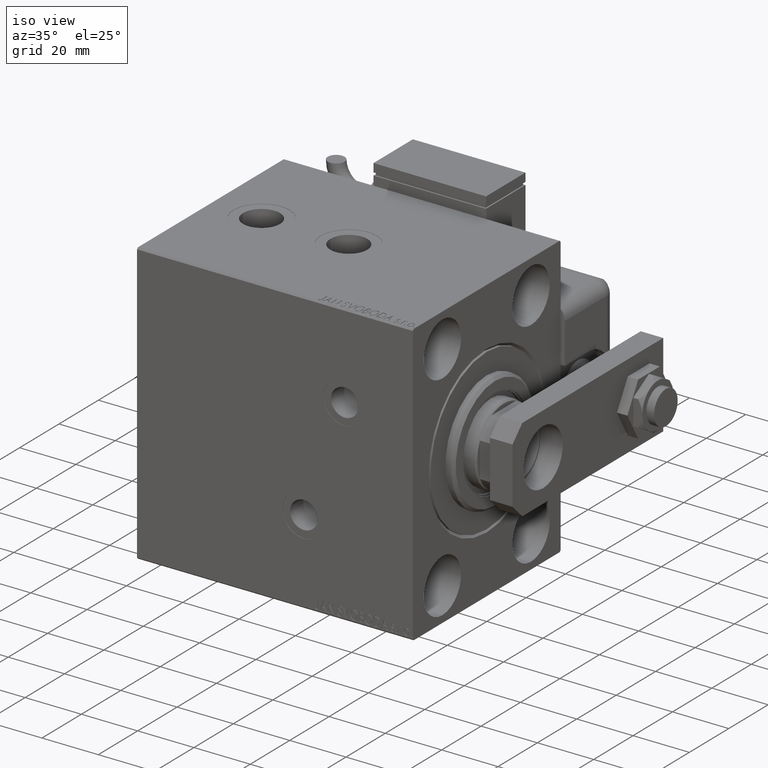
[diagram: clean part render]
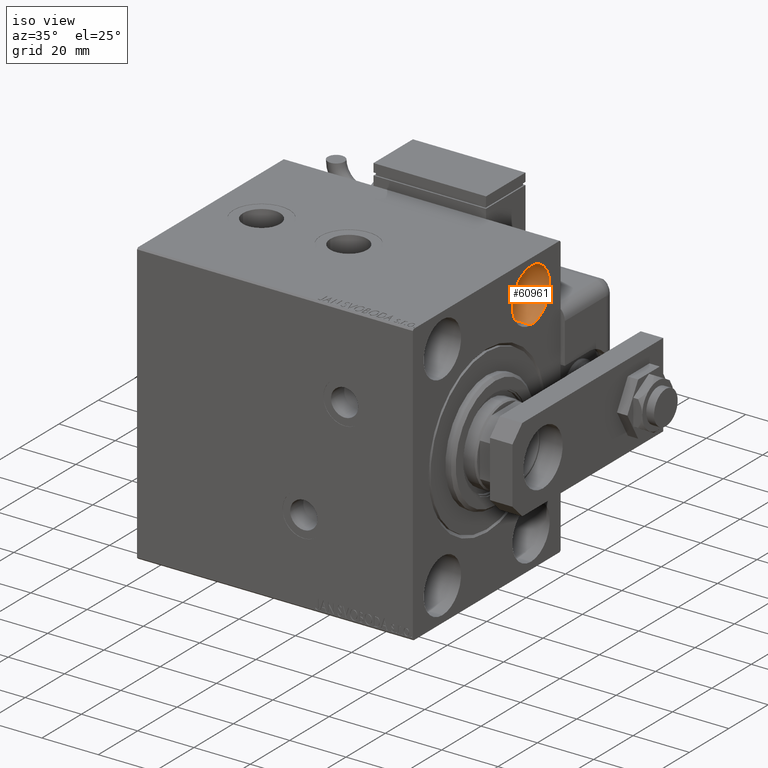
[diagram: same view with one face highlighted and labeled with its STEP entity id]
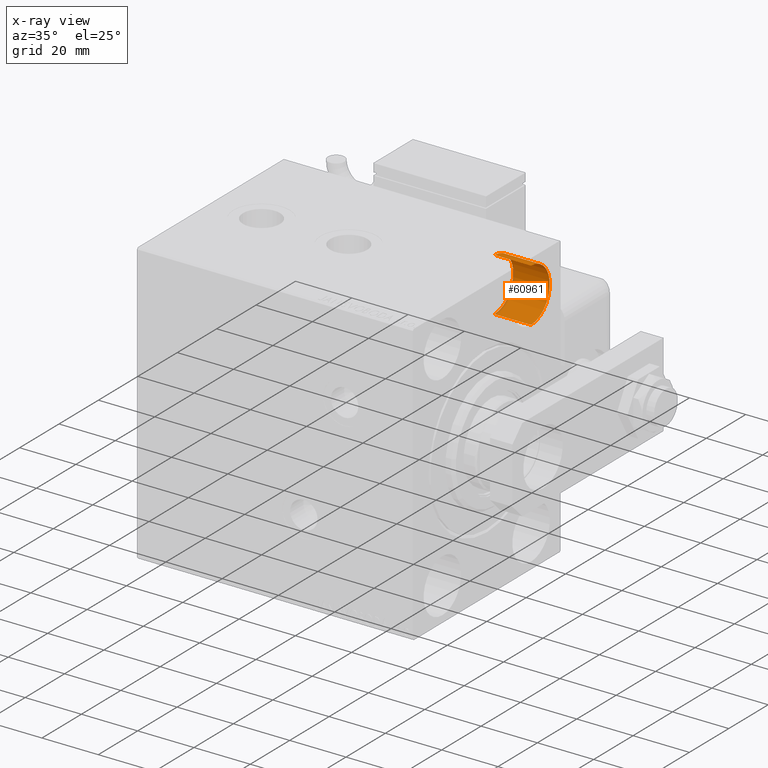
[diagram: x-ray of the same camera — body ghosted, the highlighted face saturated]
A machine part, iso view. The second image highlights one B-rep face of the part: STEP entity #60961.
The next image is the same camera in x-ray: the body ghosted, the highlighted face saturated — about 4% of this face is hidden behind the body in this view.
In plain terms, the highlighted cylindrical surface (edge-blend (fillet) strip) has radius 9.5 mm, axis along (1, -0, 0).
Its self-contained STEP definition (entity closure, byte-faithful):
#738 = EDGE_CURVE ( 'NONE', #14067, #56106, #24421, .T. ) ;
#1039 = LINE ( 'NONE', #14780, #41243 ) ;
#9080 = EDGE_CURVE ( 'NONE', #39175, #25029, #19645, .T. ) ;
#10487 = CARTESIAN_POINT ( 'NONE',  ( 0.000000000000000000, 22.49999999999999289, -38.00000000000000000 ) ) ;
#10800 = DIRECTION ( 'NONE',  ( 0.000000000000000000, 0.000000000000000000, 1.000000000000000000 ) ) ;
#11183 = CARTESIAN_POINT ( 'NONE',  ( 13.00000000000000000, 22.49999999999999289, -47.50000000000000000 ) ) ;
#14067 = VERTEX_POINT ( 'NONE', #25603 ) ;
#14780 = CARTESIAN_POINT ( 'NONE',  ( 13.00000000000000000, 22.49999999999999289, -28.49999999999999645 ) ) ;
#15585 = EDGE_LOOP ( 'NONE', ( #58829, #35788, #19187, #50350 ) ) ;
#18182 = DIRECTION ( 'NONE',  ( 0.000000000000000000, 0.000000000000000000, 1.000000000000000000 ) ) ;
#19187 = ORIENTED_EDGE ( 'NONE', *, *, #29130, .T. ) ;
#19645 = CIRCLE ( 'NONE', #22632, 9.500000000000001776 ) ;
#20470 = DIRECTION ( 'NONE',  ( -1.000000000000000000, 0.000000000000000000, 0.000000000000000000 ) ) ;
#22200 = CARTESIAN_POINT ( 'NONE',  ( 13.00000000000000000, 22.49999999999999289, -38.00000000000000000 ) ) ;
#22203 = AXIS2_PLACEMENT_3D ( 'NONE', #23779, #52511, #18182 ) ;
#22632 = AXIS2_PLACEMENT_3D ( 'NONE', #22200, #22821, #41223 ) ;
#22821 = DIRECTION ( 'NONE',  ( -1.000000000000000000, 0.000000000000000000, 0.000000000000000000 ) ) ;
#23779 = CARTESIAN_POINT ( 'NONE',  ( 13.00000000000000000, 22.49999999999999289, -38.00000000000000000 ) ) ;
#24065 = CARTESIAN_POINT ( 'NONE',  ( 13.00000000000000000, 22.49999999999999289, -47.50000000000000000 ) ) ;
#24421 = CIRCLE ( 'NONE', #59337, 9.500000000000001776 ) ;
#25029 = VERTEX_POINT ( 'NONE', #24065 ) ;
#25603 = CARTESIAN_POINT ( 'NONE',  ( 0.000000000000000000, 22.49999999999999289, -28.49999999999999645 ) ) ;
#29130 = EDGE_CURVE ( 'NONE', #39175, #14067, #1039, .T. ) ;
#29753 = EDGE_CURVE ( 'NONE', #25029, #56106, #53651, .T. ) ;
#33432 = CYLINDRICAL_SURFACE ( 'NONE', #22203, 9.500000000000001776 ) ;
#33794 = DIRECTION ( 'NONE',  ( -1.000000000000000000, -0.000000000000000000, -0.000000000000000000 ) ) ;
#35265 = VECTOR ( 'NONE', #40167, 1000.000000000000000 ) ;
#35788 = ORIENTED_EDGE ( 'NONE', *, *, #9080, .F. ) ;
#39175 = VERTEX_POINT ( 'NONE', #42919 ) ;
#40167 = DIRECTION ( 'NONE',  ( -1.000000000000000000, -0.000000000000000000, -0.000000000000000000 ) ) ;
#41223 = DIRECTION ( 'NONE',  ( 0.000000000000000000, 0.000000000000000000, 1.000000000000000000 ) ) ;
#41243 = VECTOR ( 'NONE', #33794, 1000.000000000000000 ) ;
#41309 = CARTESIAN_POINT ( 'NONE',  ( 0.000000000000000000, 22.49999999999999289, -47.50000000000000000 ) ) ;
#42919 = CARTESIAN_POINT ( 'NONE',  ( 13.00000000000000000, 22.49999999999999289, -28.49999999999999645 ) ) ;
#47497 = FACE_OUTER_BOUND ( 'NONE', #15585, .T. ) ;
#50350 = ORIENTED_EDGE ( 'NONE', *, *, #738, .T. ) ;
#52511 = DIRECTION ( 'NONE',  ( -1.000000000000000000, -0.000000000000000000, -0.000000000000000000 ) ) ;
#53651 = LINE ( 'NONE', #11183, #35265 ) ;
#56106 = VERTEX_POINT ( 'NONE', #41309 ) ;
#58829 = ORIENTED_EDGE ( 'NONE', *, *, #29753, .F. ) ;
#59337 = AXIS2_PLACEMENT_3D ( 'NONE', #10487, #20470, #10800 ) ;
#60961 = ADVANCED_FACE ( 'NONE', ( #47497 ), #33432, .F. ) ;